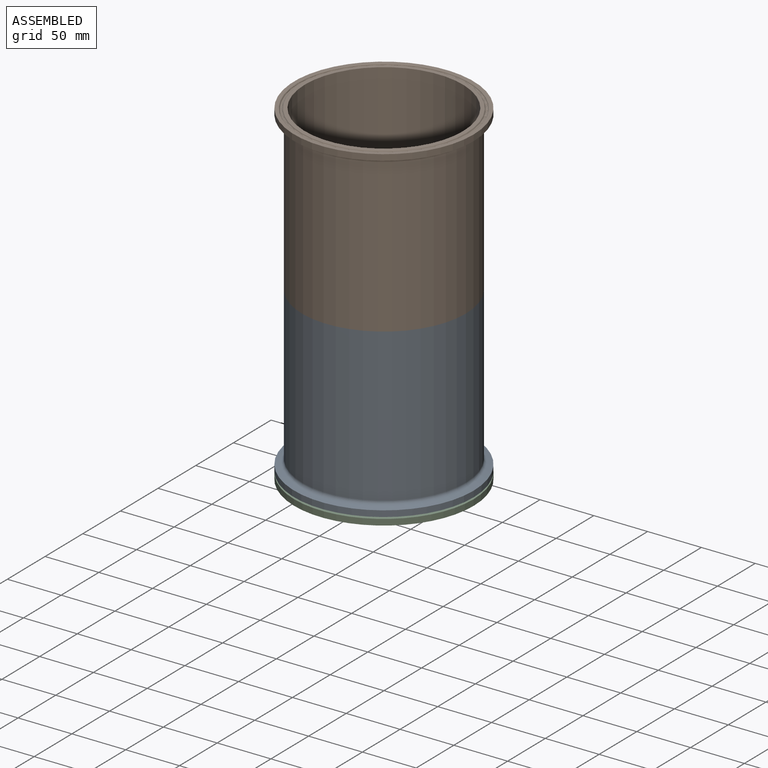
[diagram: assembled view]
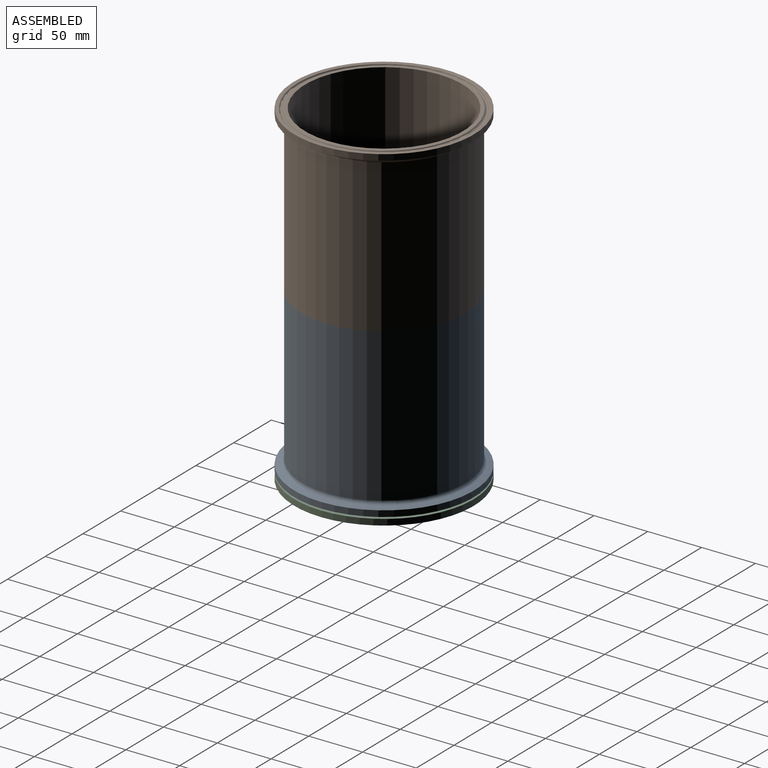
[diagram: assembled view, second angle]
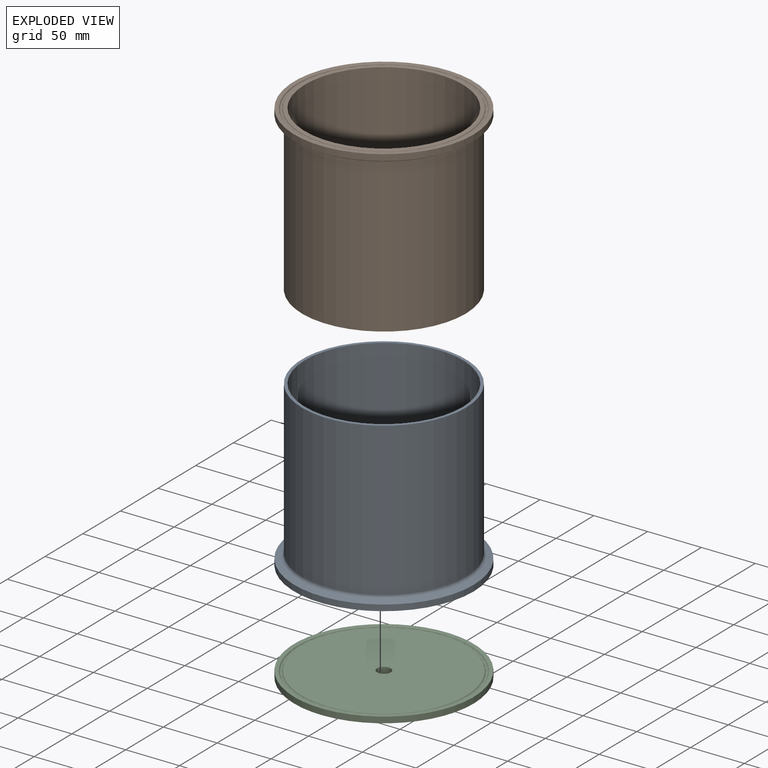
[diagram: exploded view]
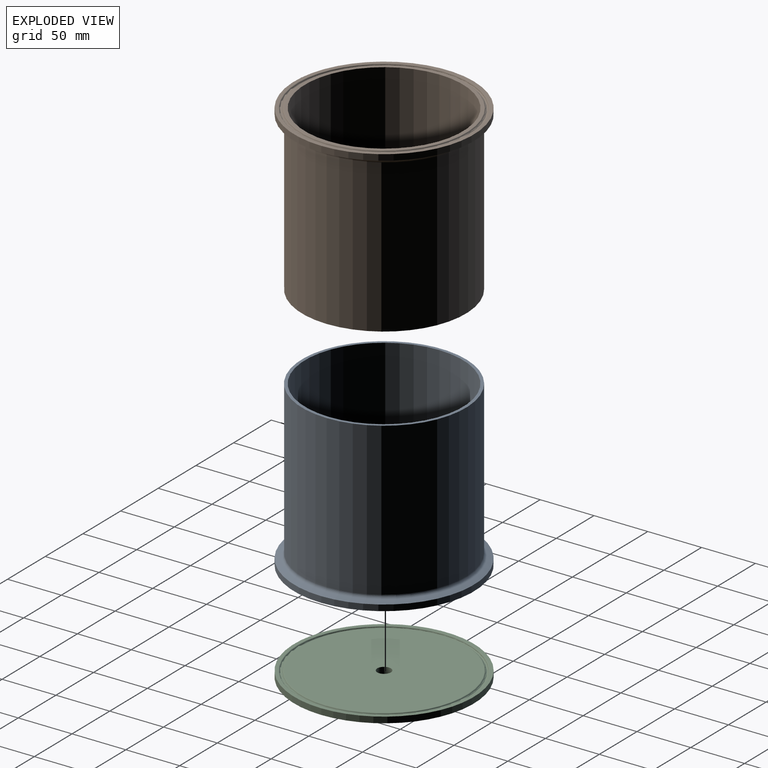
[diagram: exploded view, second angle]
ASSEMBLY  parts=3 mates=2
PART A: 13 faces, bbox 174.1x174.1x152.4 mm
  f0: plane 166.88x166.88mm, normal (0,0,1), area 1551.2mm2, adj f1,f11
  f1: torus R=80.43mm, axis (0,0,1), area 462.9mm2, adj f0,f2
  f2: cone r=79.7mm half-angle=23deg, axis (0,0,1), area 213.6mm2, adj f1,f3
  f3: torus R=78.44mm, axis (0,0,1), area 1376mm2, adj f2,f4
  f4: cone r=77.34mm half-angle=23deg, axis (0,0,-1), area 207.3mm2, adj f3,f5
  f5: torus R=76.44mm, axis (0,0,1), area 444.6mm2, adj f4,f6
  f6: plane 152.89x152.89mm, normal (0,0,1), area 1418.8mm2, adj f5,f7
  f7: cylinder r=73.43mm len=152.4mm, axis (0,0,1), area 70314.8mm2, adj f6,f12
  f8: cylinder r=76.2mm len=152.4mm, axis (0,0,1), area 67964.6mm2, adj f9,f12
  f9: torus R=79.38mm, axis (0,0,1), area 1875mm2, adj f8,f10
  f10: cone r=78.29mm half-angle=70deg, axis (0,0,1), area 2784.5mm2, adj f9,f11
  f11: cylinder r=83.44mm len=166.88mm, axis (0,0,1), area 2929.6mm2, adj f0,f10
  f12: plane 152.4x152.4mm, normal (0,0,-1), area 1301.5mm2, adj f7,f8
PART B: same geometry as A
PART C: 11 faces, bbox 174.1x174.1x11.1 mm
  f0: plane 136.59x136.59mm, normal (0,0,-1), area 14526.6mm2, adj f1,f10
  f1: cone r=68.3mm half-angle=70deg, axis (0,0,1), area 7682mm2, adj f0,f2
  f2: cylinder r=83.44mm len=166.88mm, axis (0,0,1), area 2929.6mm2, adj f1,f3
  f3: plane 166.88x166.88mm, normal (0,0,1), area 1551.2mm2, adj f2,f4
  f4: torus R=80.43mm, axis (0,0,1), area 462.9mm2, adj f3,f5
  f5: cone r=79.7mm half-angle=23deg, axis (0,0,1), area 213.6mm2, adj f4,f6
  f6: torus R=78.44mm, axis (0,0,1), area 1376mm2, adj f5,f7
  f7: cone r=77.34mm half-angle=23deg, axis (0,0,-1), area 207.3mm2, adj f6,f8
  f8: torus R=76.44mm, axis (0,0,1), area 444.6mm2, adj f7,f9
  f9: plane 152.89x152.89mm, normal (0,0,1), area 18232.1mm2, adj f8,f10
  f10: cylinder r=6.35mm len=12.7mm, axis (0,0,1), area 442.9mm2, adj f0,f9
PLACE A rot(axis=(1,0,0),180deg) t=(0,0,-304.8)mm
PLACE B at identity fixed
PLACE C rot(axis=(0,0,1),0deg) t=(0,0,-306.39)mm
MATE fastened A.f1 <-> B.f1  axis (0,0,1) through (0,0,-152.4)mm
MATE planar C.f1 <-> A.f1  axis (0,0,1) through (0,0,-306.39)mm
